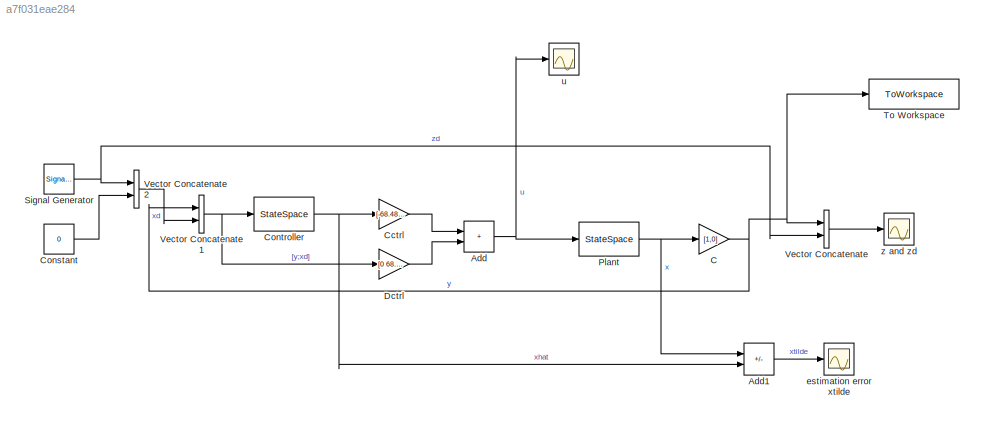
MODEL slx_a7f031eae284
KIND model
CONFIG AbsTol = 10e-10
CONFIG EnableMultiTasking = off
CONFIG FixedStep = auto
CONFIG MaxStep = auto
CONFIG MinStep = auto
CONFIG RelTol = 10e-10
CONFIG SampleTimeConstraint = Unconstrained
CONFIG SolverName = VariableStepAuto
CONFIG StartTime = 0.0
CONFIG StopTime = 30
BLOCK [Sum] Add
  IconShape = rectangular
  Ports = [2, 1]
BLOCK [Sum] Add1
  IconShape = rectangular
  Inputs = +|-
  Ports = [2, 1]
BLOCK [Gain] C
  Gain = [1,0]
  Multiplication = Matrix(K*u)
BLOCK [Gain] Cctrl
  Gain = [-68.484448305821033  -5.332406602953954]
  Multiplication = Matrix(K*u)
BLOCK [Constant] Constant
  Value = 0
BLOCK [StateSpace] Controller
  A = [  -27.2122762148338   1.0000000000000;\n  -196.0169281990568  -24.0000000000000]
  B = [27.2122762148338                   0                   0;\n   52.0169281990568   144.0000000000000   11.2122762148338]
  C = [1 0;0 1]
  D = [0 0 0; 0 0 0]
  InitialCondition = 0
  ParameterTunability = Unconstrained
  Ports = [1, 1]
BLOCK [Gain] Dctrl
  Gain = [0  68.484448305821033   5.332406602953954]
  Multiplication = Matrix(K*u)
BLOCK [StateSpace] Plant
  A = [0 1;0 -12.787723785166239]
  B = [0;2.102667153818049]
  C = [1 0;0 1]
  D = [0;0]
  InitialCondition = 0
  ParameterTunability = Unconstrained
  Ports = [1, 1]
BLOCK [SignalGenerator] Signal Generator
  Amplitude = 0.03
  Frequency = 0.1
  Ports = [0, 1]
  WaveForm = square
BLOCK [ToWorkspace] To Workspace
  FixptAsFi = on
  MaxDataPoints = inf
  Ports = [1]
  SampleTime = -1
  SaveFormat = Timeseries
  VariableName = z
BLOCK [Concatenate] Vector Concatenate
  Ports = [2, 1]
BLOCK [Concatenate] Vector Concatenate1
  Ports = [2, 1]
BLOCK [Concatenate] Vector Concatenate2
  Ports = [2, 1]
BLOCK [Scope] estimation error xtilde
  Floating = off
  NumInputPorts = 1
  Ports = [1]
  ScopeSpecificationString = Simulink.scopes.TimeScopeBlockCfg('CurrentConfiguration', extmgr.ConfigurationSet(extmgr.Configuration('Core','General UI',true),extmgr.Configuration('Core','Source UI',true),extmgr.Configuration('Sources','WiredSimulink',true,'DataLoggingVariableName','ScopeData1'),extmgr.Configuration('Visuals','Time Domain',true,'SerializedDisplays',{struct('MinYLimReal','-0.00000000011','MaxYLimReal','0.000000...<+1455ch>
BLOCK [Scope] u
  Floating = off
  NumInputPorts = 1
  Ports = [1]
  ScopeSpecificationString = Simulink.scopes.TimeScopeBlockCfg('CurrentConfiguration', extmgr.ConfigurationSet(extmgr.Configuration('Core','General UI',true),extmgr.Configuration('Core','Source UI',true),extmgr.Configuration('Sources','WiredSimulink',true,'DataLoggingVariableName','ScopeData2'),extmgr.Configuration('Visuals','Time Domain',true,'SerializedDisplays',{struct('MinYLimReal','-5.13633','MaxYLimReal','5.13633','YLab...<+1358ch>
BLOCK [Scope] z and zd
  Floating = off
  NumInputPorts = 1
  Ports = [1]
  ScopeSpecificationString = Simulink.scopes.TimeScopeBlockCfg('CurrentConfiguration', extmgr.ConfigurationSet(extmgr.Configuration('Core','General UI',true),extmgr.Configuration('Core','Source UI',true),extmgr.Configuration('Sources','WiredSimulink',true,'DataLoggingVariableName','ScopeData1'),extmgr.Configuration('Visuals','Time Domain',true,'SerializedDisplays',{struct('MinYLimReal','-0.0375','MaxYLimReal','0.0375','YLabel...<+1721ch>
LINE Add1:1 -> estimation error xtilde:1
NET Add:1 -> Plant:1, u:1
NET C:1 -> To Workspace:1, Vector Concatenate1:1, Vector Concatenate:1
LINE Cctrl:1 -> Add:1
LINE Constant:1 -> Vector Concatenate2:2
NET Controller:1 -> Add1:2, Cctrl:1
LINE Dctrl:1 -> Add:2
NET Plant:1 -> Add1:1, C:1
NET Signal Generator:1 -> Vector Concatenate2:1, Vector Concatenate:2
NET Vector Concatenate1:1 -> Controller:1, Dctrl:1
LINE Vector Concatenate2:1 -> Vector Concatenate1:2
LINE Vector Concatenate:1 -> z and zd:1
note: NET lines group one-source signal fan-out (src -> all destinations, sorted); 1:1 wires keep LINE
